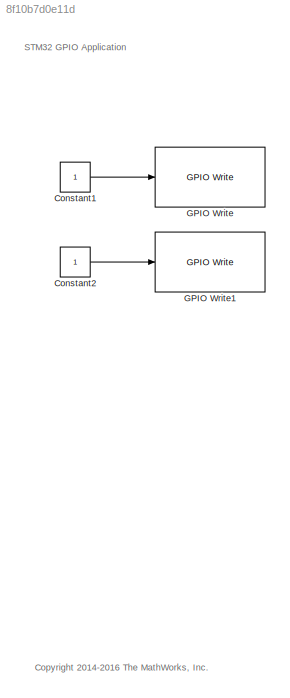
MODEL slx_8f10b7d0e11d
KIND model
CONFIG AbsTol = auto
CONFIG EnableMultiTasking = on
CONFIG FixedStep = auto
CONFIG MaxStep = auto
CONFIG MinStep = auto
CONFIG RelTol = 1e-3
CONFIG SampleTimeConstraint = Unconstrained
CONFIG Solver = ode3
CONFIG SolverName = ode3
CONFIG StartTime = 0.0
CONFIG StopTime = inf
BLOCK [Constant] Constant1
  OutDataTypeStr = boolean
  SampleTime = 0.5
BLOCK [Constant] Constant2
  OutDataTypeStr = boolean
  SampleTime = 0.5
BLOCK [Reference] GPIO Write  REF=stm32f4lib/GPIO Write
  Ports = [1]
  SourceBlock = stm32f4lib/GPIO Write
  SourceProductBaseCode = STMICRODIS
  SourceProductName = Embedded Coder Support Package for STMicroelectronics Discovery Boards
  SourceType = STM32F4 GPIO Write
BLOCK [Reference] GPIO Write1  REF=stm32f4lib/GPIO Write
  Ports = [1]
  SourceBlock = stm32f4lib/GPIO Write
  SourceProductBaseCode = STMICRODIS
  SourceProductName = Embedded Coder Support Package for STMicroelectronics Discovery Boards
  SourceType = STM32F4 GPIO Write
ANNOTATION (root): <copyright redacted>
ANNOTATION (root): STM32 GPIO Application
LINE Constant1:1 -> GPIO Write:1
LINE Constant2:1 -> GPIO Write1:1
